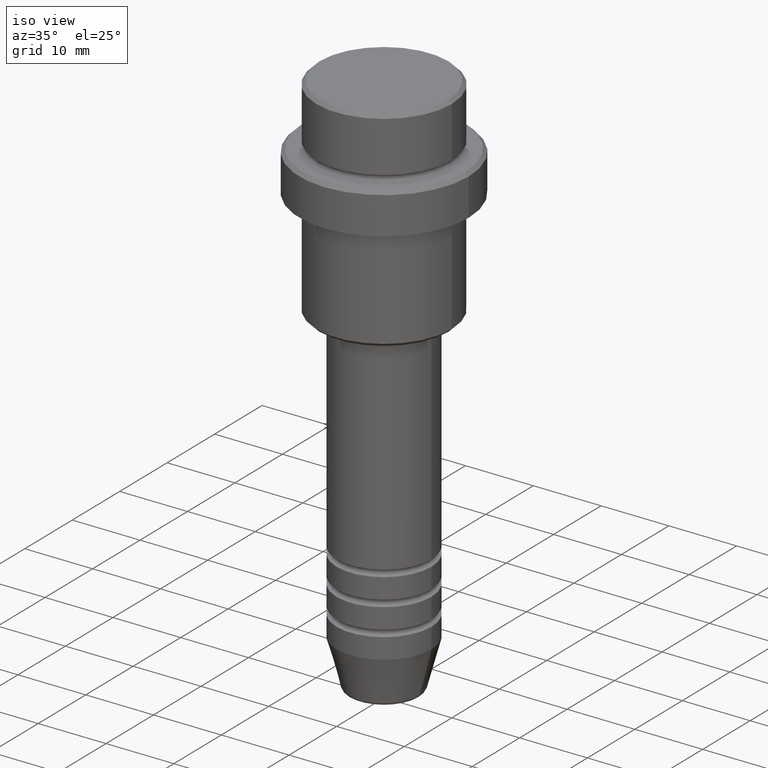
[diagram: clean part render]
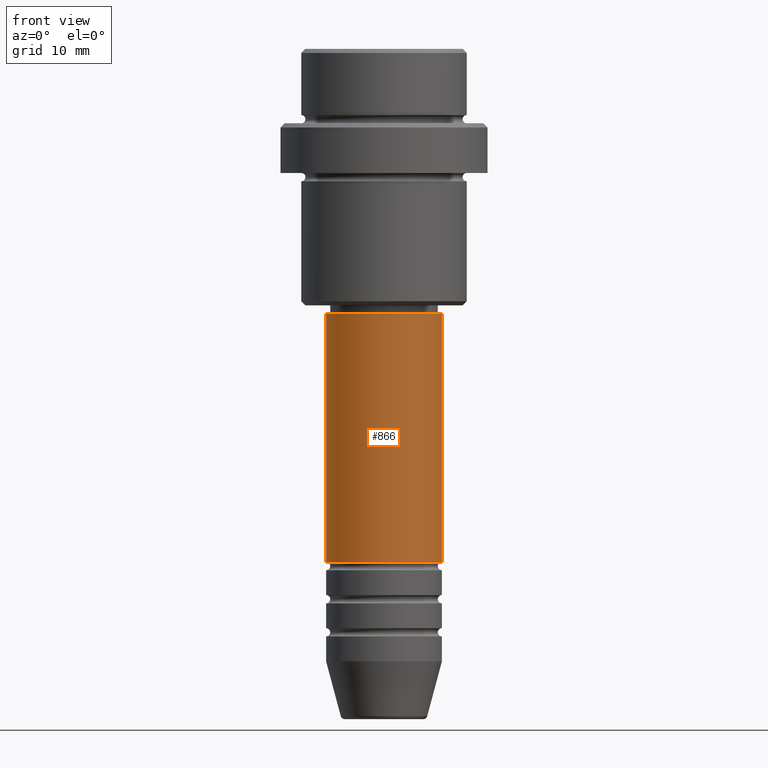
[diagram: tour spotlight — one face highlighted and labeled with its STEP entity id]
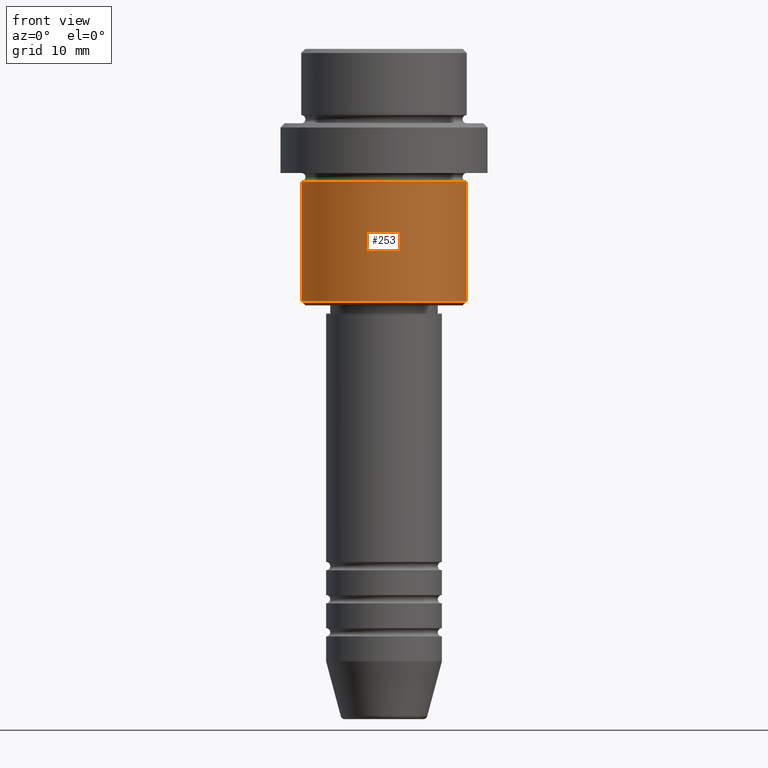
[diagram: tour spotlight — one face highlighted and labeled with its STEP entity id]
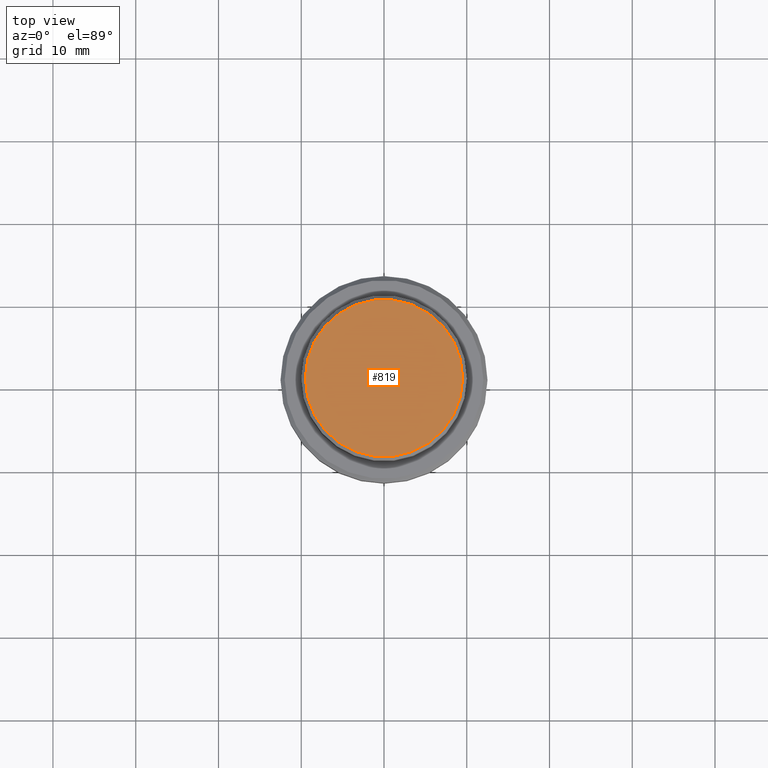
[diagram: tour spotlight — one face highlighted and labeled with its STEP entity id]
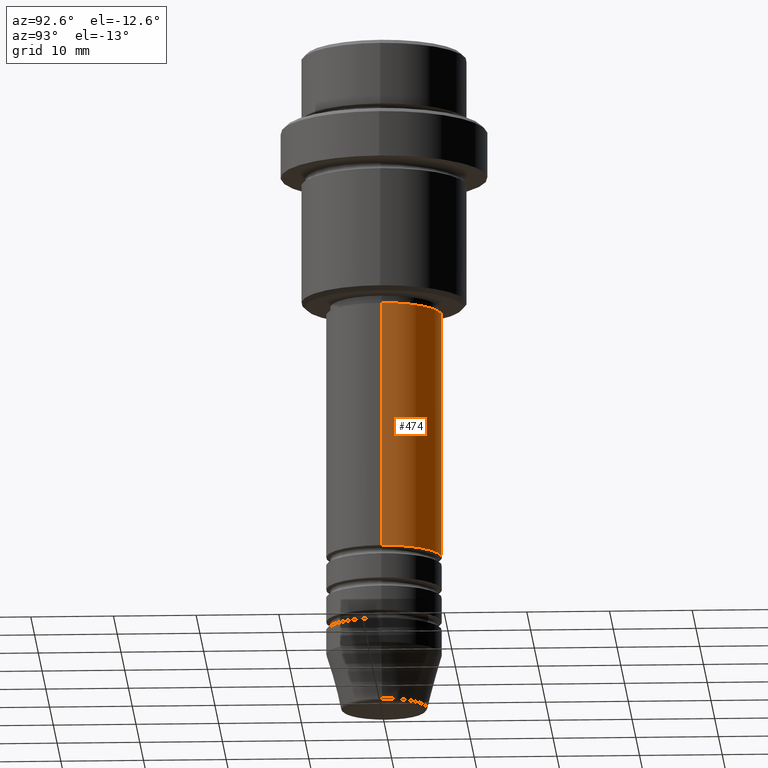
[diagram: tour spotlight — one face highlighted and labeled with its STEP entity id]
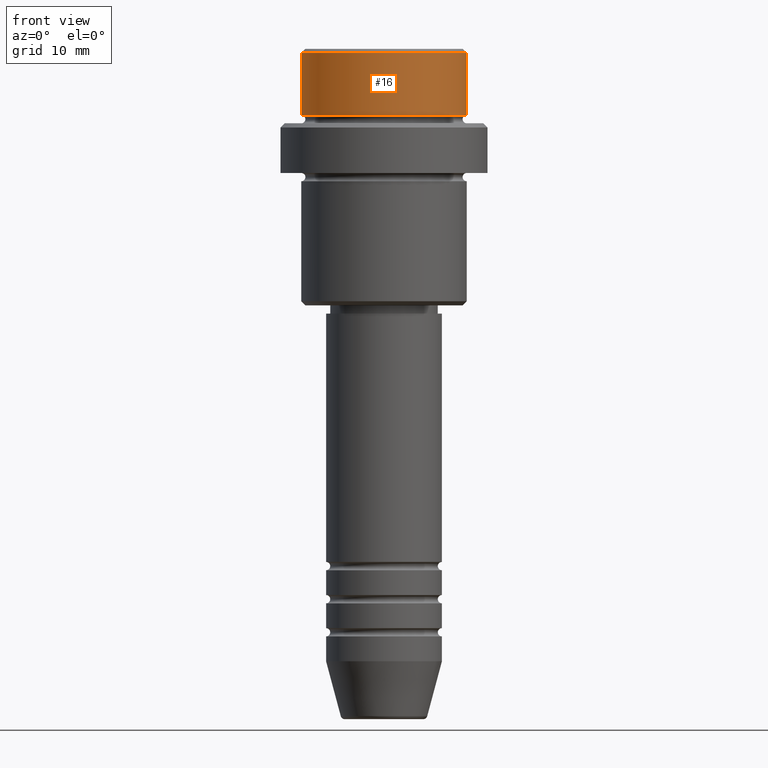
[diagram: tour spotlight — one face highlighted and labeled with its STEP entity id]
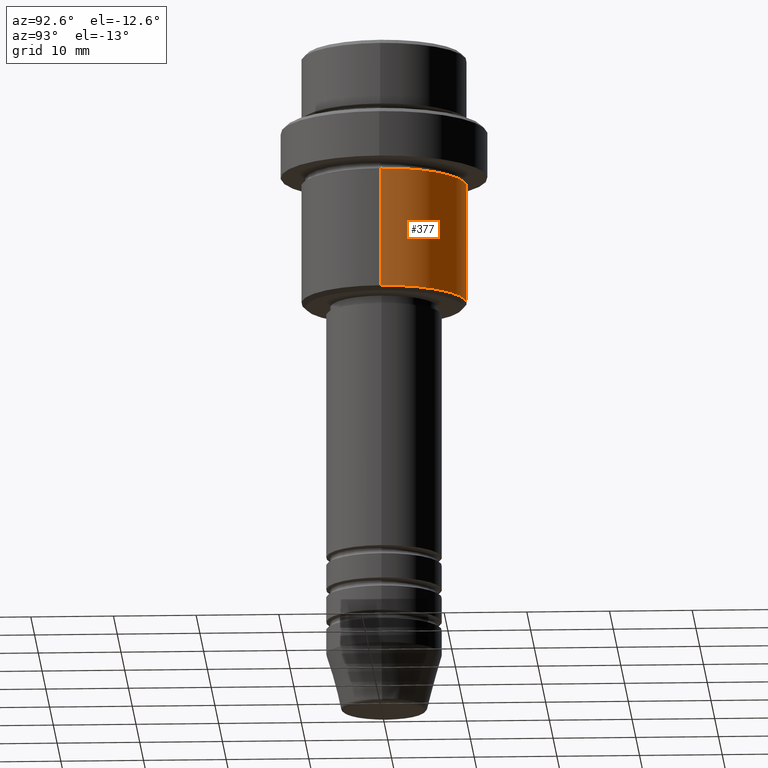
[diagram: tour spotlight — one face highlighted and labeled with its STEP entity id]
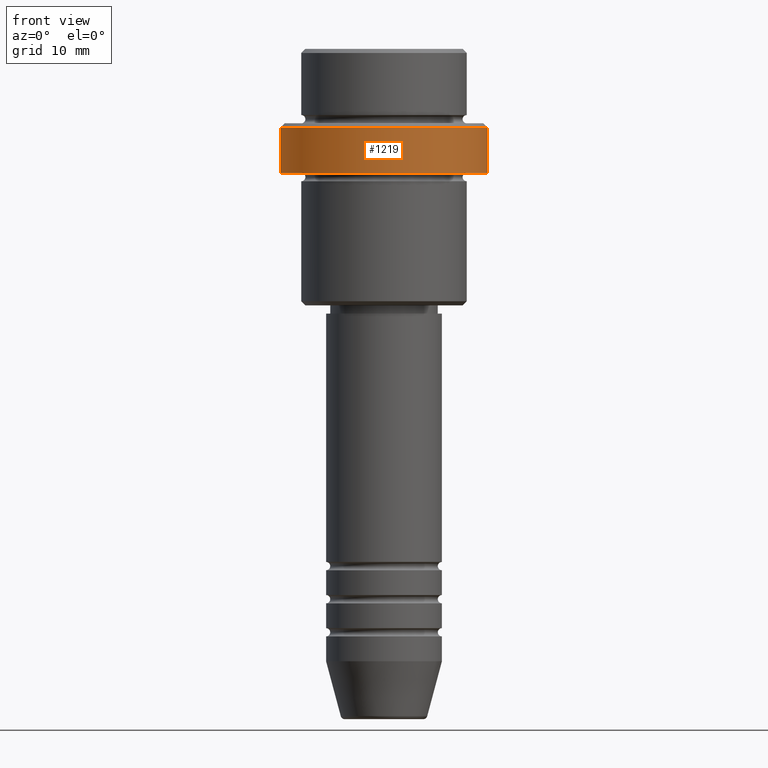
[diagram: tour spotlight — one face highlighted and labeled with its STEP entity id]
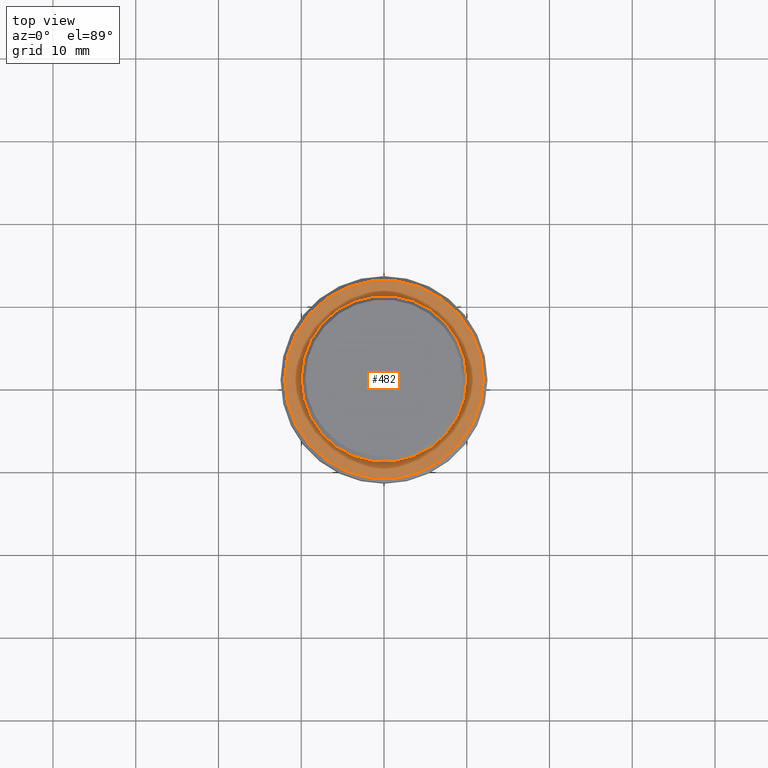
[diagram: tour spotlight — one face highlighted and labeled with its STEP entity id]
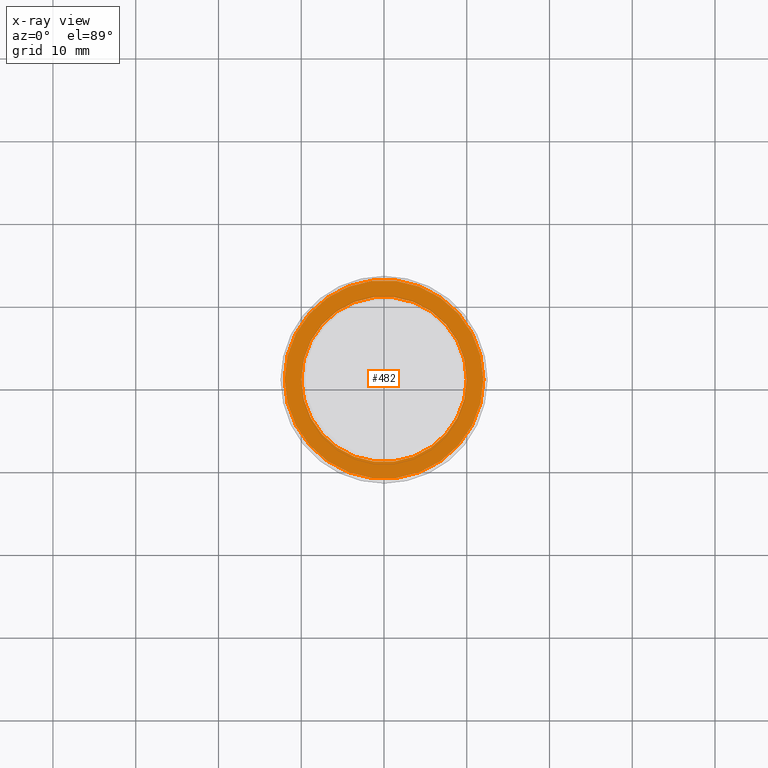
[diagram: x-ray of the same camera — body ghosted, this tour face saturated]
A machine part: a face-by-face anatomy tour. The part has 52 B-rep faces; the first image is the clean iso view, then the 8 largest visible faces are spotlighted one at a time (largest first), each with its STEP entity span.

Face 1 — front view, entity #866. In plain terms, the highlighted cylindrical surface (partial cylindrical patch) has radius 7 mm, axis along (-0, -0, 1).
Definition (entity closure, byte-faithful):
#22 = EDGE_CURVE ( 'NONE', #556, #61, #41, .T. ) ;
#25 = ORIENTED_EDGE ( 'NONE', *, *, #22, .T. ) ;
#41 = CIRCLE ( 'NONE', #670, 7.000000000000000000 ) ;
#61 = VERTEX_POINT ( 'NONE', #320 ) ;
#75 = EDGE_CURVE ( 'NONE', #61, #449, #719, .T. ) ;
#76 = CARTESIAN_POINT ( 'NONE',  ( -7.000000000000000000, 8.572527594031473190E-16, -61.99999999999987921 ) ) ;
#85 = DIRECTION ( 'NONE',  ( -0.000000000000000000, -0.000000000000000000, 1.000000000000000000 ) ) ;
#116 = ORIENTED_EDGE ( 'NONE', *, *, #75, .T. ) ;
#121 = EDGE_CURVE ( 'NONE', #556, #850, #1163, .T. ) ;
#178 = DIRECTION ( 'NONE',  ( 1.000000000000000000, 0.000000000000000000, 0.000000000000000000 ) ) ;
#203 = DIRECTION ( 'NONE',  ( -0.000000000000000000, -0.000000000000000000, 1.000000000000000000 ) ) ;
#286 = AXIS2_PLACEMENT_3D ( 'NONE', #1143, #823, #178 ) ;
#294 = CARTESIAN_POINT ( 'NONE',  ( -7.000000000000000000, 8.572527594031473190E-16, 0.000000000000000000 ) ) ;
#317 = CARTESIAN_POINT ( 'NONE',  ( 7.000000000000000000, 0.000000000000000000, 0.000000000000000000 ) ) ;
#320 = CARTESIAN_POINT ( 'NONE',  ( 7.000000000000000000, 0.000000000000000000, -61.99999999999987921 ) ) ;
#330 = CARTESIAN_POINT ( 'NONE',  ( 0.000000000000000000, 0.000000000000000000, 0.000000000000000000 ) ) ;
#362 = VECTOR ( 'NONE', #1297, 1000.000000000000000 ) ;
#369 = ORIENTED_EDGE ( 'NONE', *, *, #121, .F. ) ;
#449 = VERTEX_POINT ( 'NONE', #555 ) ;
#542 = FACE_OUTER_BOUND ( 'NONE', #791, .T. ) ;
#555 = CARTESIAN_POINT ( 'NONE',  ( 7.000000000000000000, 0.000000000000000000, -32.00000000000000000 ) ) ;
#556 = VERTEX_POINT ( 'NONE', #76 ) ;
#670 = AXIS2_PLACEMENT_3D ( 'NONE', #1049, #85, #1183 ) ;
#683 = CARTESIAN_POINT ( 'NONE',  ( -7.000000000000000000, 8.572527594031473190E-16, -32.00000000000000000 ) ) ;
#719 = LINE ( 'NONE', #317, #1057 ) ;
#763 = ORIENTED_EDGE ( 'NONE', *, *, #1014, .F. ) ;
#791 = EDGE_LOOP ( 'NONE', ( #369, #25, #116, #763 ) ) ;
#823 = DIRECTION ( 'NONE',  ( -0.000000000000000000, -0.000000000000000000, 1.000000000000000000 ) ) ;
#850 = VERTEX_POINT ( 'NONE', #683 ) ;
#866 = ADVANCED_FACE ( 'NONE', ( #542 ), #964, .T. ) ;
#964 = CYLINDRICAL_SURFACE ( 'NONE', #1155, 7.000000000000000000 ) ;
#972 = DIRECTION ( 'NONE',  ( -0.000000000000000000, -0.000000000000000000, 1.000000000000000000 ) ) ;
#981 = DIRECTION ( 'NONE',  ( 1.000000000000000000, 0.000000000000000000, 0.000000000000000000 ) ) ;
#1014 = EDGE_CURVE ( 'NONE', #850, #449, #1216, .T. ) ;
#1049 = CARTESIAN_POINT ( 'NONE',  ( 0.000000000000000000, 0.000000000000000000, -61.99999999999987921 ) ) ;
#1057 = VECTOR ( 'NONE', #203, 1000.000000000000000 ) ;
#1143 = CARTESIAN_POINT ( 'NONE',  ( 0.000000000000000000, 0.000000000000000000, -32.00000000000000000 ) ) ;
#1155 = AXIS2_PLACEMENT_3D ( 'NONE', #330, #972, #981 ) ;
#1163 = LINE ( 'NONE', #294, #362 ) ;
#1183 = DIRECTION ( 'NONE',  ( 1.000000000000000000, 0.000000000000000000, 0.000000000000000000 ) ) ;
#1216 = CIRCLE ( 'NONE', #286, 7.000000000000000000 ) ;
#1297 = DIRECTION ( 'NONE',  ( -0.000000000000000000, -0.000000000000000000, 1.000000000000000000 ) ) ;

Face 2 — front view, entity #253. In plain terms, the highlighted cylindrical surface (partial cylindrical patch) has radius 10 mm, axis along (-0, -0, 1).
Definition (entity closure, byte-faithful):
#24 = CARTESIAN_POINT ( 'NONE',  ( -9.999999999999998224, 1.224646799147353059E-15, -16.00000000000000000 ) ) ;
#147 = DIRECTION ( 'NONE',  ( -0.000000000000000000, -0.000000000000000000, 1.000000000000000000 ) ) ;
#232 = CARTESIAN_POINT ( 'NONE',  ( 0.000000000000000000, 0.000000000000000000, -16.00000000000000000 ) ) ;
#253 = ADVANCED_FACE ( 'NONE', ( #1320 ), #354, .T. ) ;
#354 = CYLINDRICAL_SURFACE ( 'NONE', #921, 9.999999999999998224 ) ;
#372 = CARTESIAN_POINT ( 'NONE',  ( 9.999999999999998224, 0.000000000000000000, -30.49999999999998224 ) ) ;
#416 = DIRECTION ( 'NONE',  ( -0.000000000000000000, -0.000000000000000000, 1.000000000000000000 ) ) ;
#476 = VERTEX_POINT ( 'NONE', #24 ) ;
#488 = VERTEX_POINT ( 'NONE', #493 ) ;
#491 = ORIENTED_EDGE ( 'NONE', *, *, #1077, .F. ) ;
#493 = CARTESIAN_POINT ( 'NONE',  ( 9.999999999999998224, 0.000000000000000000, -16.00000000000000000 ) ) ;
#494 = ORIENTED_EDGE ( 'NONE', *, *, #1021, .T. ) ;
#496 = CARTESIAN_POINT ( 'NONE',  ( 0.000000000000000000, 0.000000000000000000, -30.49999999999998224 ) ) ;
#497 = CIRCLE ( 'NONE', #987, 9.999999999999998224 ) ;
#511 = DIRECTION ( 'NONE',  ( -1.000000000000000000, 0.000000000000000000, 0.000000000000000000 ) ) ;
#524 = DIRECTION ( 'NONE',  ( -0.000000000000000000, -0.000000000000000000, 1.000000000000000000 ) ) ;
#558 = CARTESIAN_POINT ( 'NONE',  ( -9.999999999999998224, 1.224646799147353059E-15, 0.000000000000000000 ) ) ;
#581 = DIRECTION ( 'NONE',  ( 1.000000000000000000, 0.000000000000000000, 0.000000000000000000 ) ) ;
#656 = VERTEX_POINT ( 'NONE', #372 ) ;
#666 = VECTOR ( 'NONE', #416, 1000.000000000000000 ) ;
#675 = EDGE_LOOP ( 'NONE', ( #491, #1196, #494, #727 ) ) ;
#727 = ORIENTED_EDGE ( 'NONE', *, *, #1098, .F. ) ;
#921 = AXIS2_PLACEMENT_3D ( 'NONE', #1136, #147, #581 ) ;
#930 = CARTESIAN_POINT ( 'NONE',  ( -9.999999999999998224, 1.224646799147353059E-15, -30.49999999999998224 ) ) ;
#934 = DIRECTION ( 'NONE',  ( -0.000000000000000000, -0.000000000000000000, 1.000000000000000000 ) ) ;
#935 = AXIS2_PLACEMENT_3D ( 'NONE', #496, #524, #511 ) ;
#939 = LINE ( 'NONE', #1268, #1074 ) ;
#977 = LINE ( 'NONE', #558, #666 ) ;
#987 = AXIS2_PLACEMENT_3D ( 'NONE', #232, #996, #1213 ) ;
#996 = DIRECTION ( 'NONE',  ( -0.000000000000000000, -0.000000000000000000, 1.000000000000000000 ) ) ;
#1021 = EDGE_CURVE ( 'NONE', #656, #488, #939, .T. ) ;
#1028 = CIRCLE ( 'NONE', #935, 9.999999999999998224 ) ;
#1074 = VECTOR ( 'NONE', #934, 1000.000000000000000 ) ;
#1077 = EDGE_CURVE ( 'NONE', #1215, #476, #977, .T. ) ;
#1098 = EDGE_CURVE ( 'NONE', #476, #488, #497, .T. ) ;
#1136 = CARTESIAN_POINT ( 'NONE',  ( 0.000000000000000000, 0.000000000000000000, 0.000000000000000000 ) ) ;
#1196 = ORIENTED_EDGE ( 'NONE', *, *, #1211, .T. ) ;
#1211 = EDGE_CURVE ( 'NONE', #1215, #656, #1028, .T. ) ;
#1213 = DIRECTION ( 'NONE',  ( 1.000000000000000000, 0.000000000000000000, 0.000000000000000000 ) ) ;
#1215 = VERTEX_POINT ( 'NONE', #930 ) ;
#1268 = CARTESIAN_POINT ( 'NONE',  ( 9.999999999999998224, 0.000000000000000000, 0.000000000000000000 ) ) ;
#1320 = FACE_OUTER_BOUND ( 'NONE', #675, .T. ) ;

Face 3 — top view, entity #819. In plain terms, the highlighted planar face has unit normal (0, -0, 1).
Definition (entity closure, byte-faithful):
#167 = CARTESIAN_POINT ( 'NONE',  ( 0.000000000000000000, 0.000000000000000000, 0.000000000000000000 ) ) ;
#186 = DIRECTION ( 'NONE',  ( -0.000000000000000000, -0.000000000000000000, 1.000000000000000000 ) ) ;
#202 = DIRECTION ( 'NONE',  ( 0.000000000000000000, -0.000000000000000000, 1.000000000000000000 ) ) ;
#215 = DIRECTION ( 'NONE',  ( 1.000000000000000000, 0.000000000000000000, 0.000000000000000000 ) ) ;
#272 = ORIENTED_EDGE ( 'NONE', *, *, #916, .T. ) ;
#468 = EDGE_CURVE ( 'NONE', #942, #1131, #674, .T. ) ;
#570 = AXIS2_PLACEMENT_3D ( 'NONE', #679, #585, #688 ) ;
#585 = DIRECTION ( 'NONE',  ( -0.000000000000000000, -0.000000000000000000, 1.000000000000000000 ) ) ;
#620 = DIRECTION ( 'NONE',  ( 1.000000000000000000, 0.000000000000000000, 0.000000000000000000 ) ) ;
#674 = CIRCLE ( 'NONE', #570, 9.500000000000008882 ) ;
#679 = CARTESIAN_POINT ( 'NONE',  ( 0.000000000000000000, 0.000000000000000000, 0.000000000000000000 ) ) ;
#688 = DIRECTION ( 'NONE',  ( 1.000000000000000000, 0.000000000000000000, 0.000000000000000000 ) ) ;
#723 = EDGE_LOOP ( 'NONE', ( #272, #834 ) ) ;
#740 = PLANE ( 'NONE',  #995 ) ;
#819 = ADVANCED_FACE ( 'NONE', ( #1172 ), #740, .T. ) ;
#834 = ORIENTED_EDGE ( 'NONE', *, *, #468, .T. ) ;
#916 = EDGE_CURVE ( 'NONE', #1131, #942, #1383, .T. ) ;
#942 = VERTEX_POINT ( 'NONE', #1036 ) ;
#971 = AXIS2_PLACEMENT_3D ( 'NONE', #167, #186, #620 ) ;
#995 = AXIS2_PLACEMENT_3D ( 'NONE', #1187, #202, #215 ) ;
#1036 = CARTESIAN_POINT ( 'NONE',  ( 9.500000000000008882, 1.194030629168669864E-15, 0.000000000000000000 ) ) ;
#1131 = VERTEX_POINT ( 'NONE', #1315 ) ;
#1172 = FACE_OUTER_BOUND ( 'NONE', #723, .T. ) ;
#1187 = CARTESIAN_POINT ( 'NONE',  ( 0.000000000000000000, 0.000000000000000000, 0.000000000000000000 ) ) ;
#1315 = CARTESIAN_POINT ( 'NONE',  ( -9.500000000000008882, 0.000000000000000000, 0.000000000000000000 ) ) ;
#1383 = CIRCLE ( 'NONE', #971, 9.500000000000008882 ) ;

Face 4 — auxiliary view, entity #474. In plain terms, the highlighted cylindrical surface (partial cylindrical patch) has radius 7 mm, axis along (-0, -0, 1).
Definition (entity closure, byte-faithful):
#46 = DIRECTION ( 'NONE',  ( 1.000000000000000000, 0.000000000000000000, 0.000000000000000000 ) ) ;
#56 = DIRECTION ( 'NONE',  ( -0.000000000000000000, -0.000000000000000000, 1.000000000000000000 ) ) ;
#61 = VERTEX_POINT ( 'NONE', #320 ) ;
#74 = DIRECTION ( 'NONE',  ( 1.000000000000000000, 0.000000000000000000, 0.000000000000000000 ) ) ;
#75 = EDGE_CURVE ( 'NONE', #61, #449, #719, .T. ) ;
#76 = CARTESIAN_POINT ( 'NONE',  ( -7.000000000000000000, 8.572527594031473190E-16, -61.99999999999987921 ) ) ;
#121 = EDGE_CURVE ( 'NONE', #556, #850, #1163, .T. ) ;
#158 = EDGE_CURVE ( 'NONE', #61, #556, #1012, .T. ) ;
#203 = DIRECTION ( 'NONE',  ( -0.000000000000000000, -0.000000000000000000, 1.000000000000000000 ) ) ;
#294 = CARTESIAN_POINT ( 'NONE',  ( -7.000000000000000000, 8.572527594031473190E-16, 0.000000000000000000 ) ) ;
#302 = CARTESIAN_POINT ( 'NONE',  ( 0.000000000000000000, 0.000000000000000000, -61.99999999999987921 ) ) ;
#317 = CARTESIAN_POINT ( 'NONE',  ( 7.000000000000000000, 0.000000000000000000, 0.000000000000000000 ) ) ;
#320 = CARTESIAN_POINT ( 'NONE',  ( 7.000000000000000000, 0.000000000000000000, -61.99999999999987921 ) ) ;
#362 = VECTOR ( 'NONE', #1297, 1000.000000000000000 ) ;
#449 = VERTEX_POINT ( 'NONE', #555 ) ;
#467 = AXIS2_PLACEMENT_3D ( 'NONE', #1024, #56, #498 ) ;
#474 = ADVANCED_FACE ( 'NONE', ( #997 ), #1338, .T. ) ;
#498 = DIRECTION ( 'NONE',  ( 1.000000000000000000, 0.000000000000000000, 0.000000000000000000 ) ) ;
#555 = CARTESIAN_POINT ( 'NONE',  ( 7.000000000000000000, 0.000000000000000000, -32.00000000000000000 ) ) ;
#556 = VERTEX_POINT ( 'NONE', #76 ) ;
#597 = ORIENTED_EDGE ( 'NONE', *, *, #121, .T. ) ;
#659 = EDGE_CURVE ( 'NONE', #449, #850, #901, .T. ) ;
#683 = CARTESIAN_POINT ( 'NONE',  ( -7.000000000000000000, 8.572527594031473190E-16, -32.00000000000000000 ) ) ;
#719 = LINE ( 'NONE', #317, #1057 ) ;
#750 = ORIENTED_EDGE ( 'NONE', *, *, #75, .F. ) ;
#770 = DIRECTION ( 'NONE',  ( -0.000000000000000000, -0.000000000000000000, 1.000000000000000000 ) ) ;
#773 = EDGE_LOOP ( 'NONE', ( #886, #597, #1051, #750 ) ) ;
#850 = VERTEX_POINT ( 'NONE', #683 ) ;
#857 = AXIS2_PLACEMENT_3D ( 'NONE', #900, #770, #46 ) ;
#886 = ORIENTED_EDGE ( 'NONE', *, *, #158, .T. ) ;
#900 = CARTESIAN_POINT ( 'NONE',  ( 0.000000000000000000, 0.000000000000000000, 0.000000000000000000 ) ) ;
#901 = CIRCLE ( 'NONE', #467, 7.000000000000000000 ) ;
#997 = FACE_OUTER_BOUND ( 'NONE', #773, .T. ) ;
#1012 = CIRCLE ( 'NONE', #1198, 7.000000000000000000 ) ;
#1024 = CARTESIAN_POINT ( 'NONE',  ( 0.000000000000000000, 0.000000000000000000, -32.00000000000000000 ) ) ;
#1047 = DIRECTION ( 'NONE',  ( -0.000000000000000000, -0.000000000000000000, 1.000000000000000000 ) ) ;
#1051 = ORIENTED_EDGE ( 'NONE', *, *, #659, .F. ) ;
#1057 = VECTOR ( 'NONE', #203, 1000.000000000000000 ) ;
#1163 = LINE ( 'NONE', #294, #362 ) ;
#1198 = AXIS2_PLACEMENT_3D ( 'NONE', #302, #1047, #74 ) ;
#1297 = DIRECTION ( 'NONE',  ( -0.000000000000000000, -0.000000000000000000, 1.000000000000000000 ) ) ;
#1338 = CYLINDRICAL_SURFACE ( 'NONE', #857, 7.000000000000000000 ) ;

Face 5 — front view, entity #16. In plain terms, the highlighted cylindrical surface (partial cylindrical patch) has radius 10 mm, axis along (-0, -0, 1).
Definition (entity closure, byte-faithful):
#16 = ADVANCED_FACE ( 'NONE', ( #1043 ), #1395, .T. ) ;
#36 = CARTESIAN_POINT ( 'NONE',  ( -9.999999999999998224, 1.224646799147353059E-15, -7.999999999999998224 ) ) ;
#63 = CARTESIAN_POINT ( 'NONE',  ( 0.000000000000000000, 0.000000000000000000, -7.999999999999998224 ) ) ;
#72 = CARTESIAN_POINT ( 'NONE',  ( -9.999999999999998224, 1.224646799147353059E-15, -0.4999999999999970024 ) ) ;
#73 = CARTESIAN_POINT ( 'NONE',  ( -9.999999999999998224, 1.224646799147353059E-15, 0.000000000000000000 ) ) ;
#78 = CARTESIAN_POINT ( 'NONE',  ( 0.000000000000000000, 0.000000000000000000, 0.000000000000000000 ) ) ;
#87 = CARTESIAN_POINT ( 'NONE',  ( 0.000000000000000000, 0.000000000000000000, -0.4999999999999970024 ) ) ;
#113 = AXIS2_PLACEMENT_3D ( 'NONE', #63, #503, #1144 ) ;
#126 = CARTESIAN_POINT ( 'NONE',  ( 9.999999999999998224, 0.000000000000000000, 0.000000000000000000 ) ) ;
#140 = ORIENTED_EDGE ( 'NONE', *, *, #1206, .F. ) ;
#193 = DIRECTION ( 'NONE',  ( 1.000000000000000000, 0.000000000000000000, 0.000000000000000000 ) ) ;
#341 = VECTOR ( 'NONE', #409, 1000.000000000000000 ) ;
#348 = AXIS2_PLACEMENT_3D ( 'NONE', #78, #521, #514 ) ;
#349 = LINE ( 'NONE', #126, #403 ) ;
#358 = EDGE_CURVE ( 'NONE', #637, #599, #550, .T. ) ;
#391 = CIRCLE ( 'NONE', #803, 9.999999999999998224 ) ;
#403 = VECTOR ( 'NONE', #664, 1000.000000000000000 ) ;
#409 = DIRECTION ( 'NONE',  ( -0.000000000000000000, -0.000000000000000000, 1.000000000000000000 ) ) ;
#415 = ORIENTED_EDGE ( 'NONE', *, *, #1139, .T. ) ;
#503 = DIRECTION ( 'NONE',  ( -0.000000000000000000, -0.000000000000000000, 1.000000000000000000 ) ) ;
#514 = DIRECTION ( 'NONE',  ( 1.000000000000000000, 0.000000000000000000, 0.000000000000000000 ) ) ;
#521 = DIRECTION ( 'NONE',  ( -0.000000000000000000, -0.000000000000000000, 1.000000000000000000 ) ) ;
#550 = CIRCLE ( 'NONE', #113, 9.999999999999998224 ) ;
#599 = VERTEX_POINT ( 'NONE', #604 ) ;
#604 = CARTESIAN_POINT ( 'NONE',  ( 9.999999999999998224, 0.000000000000000000, -7.999999999999998224 ) ) ;
#637 = VERTEX_POINT ( 'NONE', #36 ) ;
#664 = DIRECTION ( 'NONE',  ( -0.000000000000000000, -0.000000000000000000, 1.000000000000000000 ) ) ;
#744 = CARTESIAN_POINT ( 'NONE',  ( 9.999999999999998224, 0.000000000000000000, -0.4999999999999970024 ) ) ;
#797 = EDGE_CURVE ( 'NONE', #852, #928, #391, .T. ) ;
#803 = AXIS2_PLACEMENT_3D ( 'NONE', #87, #1046, #193 ) ;
#852 = VERTEX_POINT ( 'NONE', #744 ) ;
#918 = ORIENTED_EDGE ( 'NONE', *, *, #358, .T. ) ;
#928 = VERTEX_POINT ( 'NONE', #72 ) ;
#1043 = FACE_OUTER_BOUND ( 'NONE', #1323, .T. ) ;
#1046 = DIRECTION ( 'NONE',  ( 0.000000000000000000, 0.000000000000000000, -1.000000000000000000 ) ) ;
#1073 = ORIENTED_EDGE ( 'NONE', *, *, #797, .T. ) ;
#1139 = EDGE_CURVE ( 'NONE', #599, #852, #349, .T. ) ;
#1144 = DIRECTION ( 'NONE',  ( 1.000000000000000000, 0.000000000000000000, 0.000000000000000000 ) ) ;
#1206 = EDGE_CURVE ( 'NONE', #637, #928, #1279, .T. ) ;
#1279 = LINE ( 'NONE', #73, #341 ) ;
#1323 = EDGE_LOOP ( 'NONE', ( #140, #918, #415, #1073 ) ) ;
#1395 = CYLINDRICAL_SURFACE ( 'NONE', #348, 9.999999999999998224 ) ;

Face 6 — auxiliary view, entity #377. In plain terms, the highlighted cylindrical surface (partial cylindrical patch) has radius 10 mm, axis along (-0, -0, 1).
Definition (entity closure, byte-faithful):
#20 = DIRECTION ( 'NONE',  ( -0.000000000000000000, -0.000000000000000000, 1.000000000000000000 ) ) ;
#24 = CARTESIAN_POINT ( 'NONE',  ( -9.999999999999998224, 1.224646799147353059E-15, -16.00000000000000000 ) ) ;
#47 = ORIENTED_EDGE ( 'NONE', *, *, #764, .F. ) ;
#93 = AXIS2_PLACEMENT_3D ( 'NONE', #993, #20, #677 ) ;
#122 = DIRECTION ( 'NONE',  ( -0.000000000000000000, -0.000000000000000000, 1.000000000000000000 ) ) ;
#224 = CARTESIAN_POINT ( 'NONE',  ( 0.000000000000000000, 0.000000000000000000, 0.000000000000000000 ) ) ;
#226 = ORIENTED_EDGE ( 'NONE', *, *, #545, .T. ) ;
#289 = DIRECTION ( 'NONE',  ( -0.000000000000000000, -0.000000000000000000, 1.000000000000000000 ) ) ;
#324 = ORIENTED_EDGE ( 'NONE', *, *, #1077, .T. ) ;
#372 = CARTESIAN_POINT ( 'NONE',  ( 9.999999999999998224, 0.000000000000000000, -30.49999999999998224 ) ) ;
#377 = ADVANCED_FACE ( 'NONE', ( #1072 ), #1302, .T. ) ;
#416 = DIRECTION ( 'NONE',  ( -0.000000000000000000, -0.000000000000000000, 1.000000000000000000 ) ) ;
#464 = CIRCLE ( 'NONE', #485, 9.999999999999998224 ) ;
#476 = VERTEX_POINT ( 'NONE', #24 ) ;
#485 = AXIS2_PLACEMENT_3D ( 'NONE', #919, #289, #1361 ) ;
#488 = VERTEX_POINT ( 'NONE', #493 ) ;
#493 = CARTESIAN_POINT ( 'NONE',  ( 9.999999999999998224, 0.000000000000000000, -16.00000000000000000 ) ) ;
#545 = EDGE_CURVE ( 'NONE', #656, #1215, #464, .T. ) ;
#558 = CARTESIAN_POINT ( 'NONE',  ( -9.999999999999998224, 1.224646799147353059E-15, 0.000000000000000000 ) ) ;
#656 = VERTEX_POINT ( 'NONE', #372 ) ;
#666 = VECTOR ( 'NONE', #416, 1000.000000000000000 ) ;
#677 = DIRECTION ( 'NONE',  ( 1.000000000000000000, 0.000000000000000000, 0.000000000000000000 ) ) ;
#714 = CIRCLE ( 'NONE', #93, 9.999999999999998224 ) ;
#764 = EDGE_CURVE ( 'NONE', #488, #476, #714, .T. ) ;
#796 = ORIENTED_EDGE ( 'NONE', *, *, #1021, .F. ) ;
#885 = DIRECTION ( 'NONE',  ( 1.000000000000000000, 0.000000000000000000, 0.000000000000000000 ) ) ;
#919 = CARTESIAN_POINT ( 'NONE',  ( 0.000000000000000000, 0.000000000000000000, -30.49999999999998224 ) ) ;
#930 = CARTESIAN_POINT ( 'NONE',  ( -9.999999999999998224, 1.224646799147353059E-15, -30.49999999999998224 ) ) ;
#934 = DIRECTION ( 'NONE',  ( -0.000000000000000000, -0.000000000000000000, 1.000000000000000000 ) ) ;
#939 = LINE ( 'NONE', #1268, #1074 ) ;
#977 = LINE ( 'NONE', #558, #666 ) ;
#993 = CARTESIAN_POINT ( 'NONE',  ( 0.000000000000000000, 0.000000000000000000, -16.00000000000000000 ) ) ;
#1021 = EDGE_CURVE ( 'NONE', #656, #488, #939, .T. ) ;
#1072 = FACE_OUTER_BOUND ( 'NONE', #1151, .T. ) ;
#1074 = VECTOR ( 'NONE', #934, 1000.000000000000000 ) ;
#1077 = EDGE_CURVE ( 'NONE', #1215, #476, #977, .T. ) ;
#1151 = EDGE_LOOP ( 'NONE', ( #226, #324, #47, #796 ) ) ;
#1215 = VERTEX_POINT ( 'NONE', #930 ) ;
#1220 = AXIS2_PLACEMENT_3D ( 'NONE', #224, #122, #885 ) ;
#1268 = CARTESIAN_POINT ( 'NONE',  ( 9.999999999999998224, 0.000000000000000000, 0.000000000000000000 ) ) ;
#1302 = CYLINDRICAL_SURFACE ( 'NONE', #1220, 9.999999999999998224 ) ;
#1361 = DIRECTION ( 'NONE',  ( -1.000000000000000000, 0.000000000000000000, 0.000000000000000000 ) ) ;

Face 7 — front view, entity #1219. In plain terms, the highlighted cylindrical surface (partial cylindrical patch) has radius 12.5 mm, axis along (-0, -0, 1).
Definition (entity closure, byte-faithful):
#37 = EDGE_LOOP ( 'NONE', ( #1175, #967, #1327, #1307 ) ) ;
#84 = AXIS2_PLACEMENT_3D ( 'NONE', #1002, #132, #361 ) ;
#132 = DIRECTION ( 'NONE',  ( -0.000000000000000000, -0.000000000000000000, 1.000000000000000000 ) ) ;
#183 = AXIS2_PLACEMENT_3D ( 'NONE', #326, #725, #839 ) ;
#255 = VERTEX_POINT ( 'NONE', #895 ) ;
#301 = CYLINDRICAL_SURFACE ( 'NONE', #792, 12.50000000000000000 ) ;
#313 = VERTEX_POINT ( 'NONE', #458 ) ;
#326 = CARTESIAN_POINT ( 'NONE',  ( 0.000000000000000000, 0.000000000000000000, -9.500000000000005329 ) ) ;
#360 = CIRCLE ( 'NONE', #84, 12.50000000000000000 ) ;
#361 = DIRECTION ( 'NONE',  ( 1.000000000000000000, 0.000000000000000000, 0.000000000000000000 ) ) ;
#422 = VERTEX_POINT ( 'NONE', #874 ) ;
#458 = CARTESIAN_POINT ( 'NONE',  ( -12.50000000000000000, 1.530808498934191521E-15, -15.00000000000000000 ) ) ;
#605 = CARTESIAN_POINT ( 'NONE',  ( -12.50000000000000000, 1.530808498934191521E-15, -9.500000000000005329 ) ) ;
#692 = EDGE_CURVE ( 'NONE', #255, #422, #1247, .T. ) ;
#701 = VERTEX_POINT ( 'NONE', #605 ) ;
#725 = DIRECTION ( 'NONE',  ( 0.000000000000000000, 0.000000000000000000, -1.000000000000000000 ) ) ;
#733 = VECTOR ( 'NONE', #1041, 1000.000000000000000 ) ;
#792 = AXIS2_PLACEMENT_3D ( 'NONE', #1270, #836, #818 ) ;
#815 = EDGE_CURVE ( 'NONE', #422, #701, #1016, .T. ) ;
#818 = DIRECTION ( 'NONE',  ( 1.000000000000000000, 0.000000000000000000, 0.000000000000000000 ) ) ;
#836 = DIRECTION ( 'NONE',  ( -0.000000000000000000, -0.000000000000000000, 1.000000000000000000 ) ) ;
#839 = DIRECTION ( 'NONE',  ( 1.000000000000000000, 0.000000000000000000, 0.000000000000000000 ) ) ;
#874 = CARTESIAN_POINT ( 'NONE',  ( 12.50000000000000000, 0.000000000000000000, -9.500000000000005329 ) ) ;
#895 = CARTESIAN_POINT ( 'NONE',  ( 12.50000000000000000, 0.000000000000000000, -15.00000000000000000 ) ) ;
#944 = FACE_OUTER_BOUND ( 'NONE', #37, .T. ) ;
#963 = DIRECTION ( 'NONE',  ( -0.000000000000000000, -0.000000000000000000, 1.000000000000000000 ) ) ;
#967 = ORIENTED_EDGE ( 'NONE', *, *, #1145, .T. ) ;
#1002 = CARTESIAN_POINT ( 'NONE',  ( 0.000000000000000000, 0.000000000000000000, -15.00000000000000000 ) ) ;
#1016 = CIRCLE ( 'NONE', #183, 12.50000000000000000 ) ;
#1041 = DIRECTION ( 'NONE',  ( -0.000000000000000000, -0.000000000000000000, 1.000000000000000000 ) ) ;
#1140 = VECTOR ( 'NONE', #963, 1000.000000000000000 ) ;
#1145 = EDGE_CURVE ( 'NONE', #313, #255, #360, .T. ) ;
#1175 = ORIENTED_EDGE ( 'NONE', *, *, #1319, .F. ) ;
#1219 = ADVANCED_FACE ( 'NONE', ( #944 ), #301, .T. ) ;
#1239 = LINE ( 'NONE', #1305, #1140 ) ;
#1247 = LINE ( 'NONE', #1344, #733 ) ;
#1270 = CARTESIAN_POINT ( 'NONE',  ( 0.000000000000000000, 0.000000000000000000, 0.000000000000000000 ) ) ;
#1305 = CARTESIAN_POINT ( 'NONE',  ( -12.50000000000000000, 1.530808498934191521E-15, 0.000000000000000000 ) ) ;
#1307 = ORIENTED_EDGE ( 'NONE', *, *, #815, .T. ) ;
#1319 = EDGE_CURVE ( 'NONE', #313, #701, #1239, .T. ) ;
#1327 = ORIENTED_EDGE ( 'NONE', *, *, #692, .T. ) ;
#1344 = CARTESIAN_POINT ( 'NONE',  ( 12.50000000000000000, 0.000000000000000000, 0.000000000000000000 ) ) ;

Face 8 — top view, entity #482. An x-ray twin of the same camera follows (body ghosted, this face saturated) — the face is partly hidden behind the body. In plain terms, the highlighted planar face has unit normal (0, -0, 1).
Definition (entity closure, byte-faithful):
#14 = VERTEX_POINT ( 'NONE', #1282 ) ;
#52 = DIRECTION ( 'NONE',  ( 1.000000000000000000, 0.000000000000000000, 0.000000000000000000 ) ) ;
#53 = EDGE_LOOP ( 'NONE', ( #1385, #911 ) ) ;
#70 = EDGE_CURVE ( 'NONE', #465, #974, #609, .T. ) ;
#97 = ORIENTED_EDGE ( 'NONE', *, *, #478, .T. ) ;
#109 = CARTESIAN_POINT ( 'NONE',  ( 0.000000000000000000, 0.000000000000000000, -9.000000000000000000 ) ) ;
#112 = DIRECTION ( 'NONE',  ( -0.000000000000000000, -0.000000000000000000, 1.000000000000000000 ) ) ;
#134 = CARTESIAN_POINT ( 'NONE',  ( 0.000000000000000000, 9.499999999999992895, -9.000000000000000000 ) ) ;
#156 = DIRECTION ( 'NONE',  ( 0.000000000000000000, -0.000000000000000000, 1.000000000000000000 ) ) ;
#165 = EDGE_CURVE ( 'NONE', #14, #1317, #271, .T. ) ;
#201 = EDGE_CURVE ( 'NONE', #974, #465, #992, .T. ) ;
#216 = DIRECTION ( 'NONE',  ( 1.000000000000000000, 0.000000000000000000, 0.000000000000000000 ) ) ;
#258 = PLANE ( 'NONE',  #504 ) ;
#271 = CIRCLE ( 'NONE', #484, 9.999999999999992895 ) ;
#321 = AXIS2_PLACEMENT_3D ( 'NONE', #1019, #368, #785 ) ;
#331 = CARTESIAN_POINT ( 'NONE',  ( 0.000000000000000000, 0.000000000000000000, -9.000000000000000000 ) ) ;
#368 = DIRECTION ( 'NONE',  ( 0.000000000000000000, 0.000000000000000000, -1.000000000000000000 ) ) ;
#386 = AXIS2_PLACEMENT_3D ( 'NONE', #331, #112, #535 ) ;
#426 = DIRECTION ( 'NONE',  ( 1.000000000000000000, 0.000000000000000000, 0.000000000000000000 ) ) ;
#433 = CARTESIAN_POINT ( 'NONE',  ( 0.000000000000000000, 0.000000000000000000, -9.000000000000000000 ) ) ;
#465 = VERTEX_POINT ( 'NONE', #1124 ) ;
#478 = EDGE_CURVE ( 'NONE', #1317, #14, #923, .T. ) ;
#482 = ADVANCED_FACE ( 'NONE', ( #1227, #1234 ), #258, .T. ) ;
#484 = AXIS2_PLACEMENT_3D ( 'NONE', #433, #1158, #426 ) ;
#504 = AXIS2_PLACEMENT_3D ( 'NONE', #134, #156, #52 ) ;
#535 = DIRECTION ( 'NONE',  ( 1.000000000000000000, 0.000000000000000000, 0.000000000000000000 ) ) ;
#609 = CIRCLE ( 'NONE', #386, 11.99999999999999645 ) ;
#735 = CARTESIAN_POINT ( 'NONE',  ( 9.999999999999992895, 0.000000000000000000, -9.000000000000000000 ) ) ;
#759 = EDGE_LOOP ( 'NONE', ( #97, #1405 ) ) ;
#785 = DIRECTION ( 'NONE',  ( 1.000000000000000000, 0.000000000000000000, 0.000000000000000000 ) ) ;
#911 = ORIENTED_EDGE ( 'NONE', *, *, #70, .T. ) ;
#923 = CIRCLE ( 'NONE', #321, 9.999999999999992895 ) ;
#970 = DIRECTION ( 'NONE',  ( -0.000000000000000000, -0.000000000000000000, 1.000000000000000000 ) ) ;
#974 = VERTEX_POINT ( 'NONE', #1161 ) ;
#992 = CIRCLE ( 'NONE', #1264, 11.99999999999999645 ) ;
#1019 = CARTESIAN_POINT ( 'NONE',  ( 0.000000000000000000, 0.000000000000000000, -9.000000000000000000 ) ) ;
#1124 = CARTESIAN_POINT ( 'NONE',  ( 11.99999999999999645, 1.500192328955507537E-15, -9.000000000000000000 ) ) ;
#1158 = DIRECTION ( 'NONE',  ( 0.000000000000000000, 0.000000000000000000, -1.000000000000000000 ) ) ;
#1161 = CARTESIAN_POINT ( 'NONE',  ( -11.99999999999999645, 0.000000000000000000, -9.000000000000000000 ) ) ;
#1227 = FACE_OUTER_BOUND ( 'NONE', #53, .T. ) ;
#1234 = FACE_BOUND ( 'NONE', #759, .T. ) ;
#1264 = AXIS2_PLACEMENT_3D ( 'NONE', #109, #970, #216 ) ;
#1282 = CARTESIAN_POINT ( 'NONE',  ( -9.999999999999992895, 1.224646799147352468E-15, -9.000000000000000000 ) ) ;
#1317 = VERTEX_POINT ( 'NONE', #735 ) ;
#1385 = ORIENTED_EDGE ( 'NONE', *, *, #201, .T. ) ;
#1405 = ORIENTED_EDGE ( 'NONE', *, *, #165, .T. ) ;